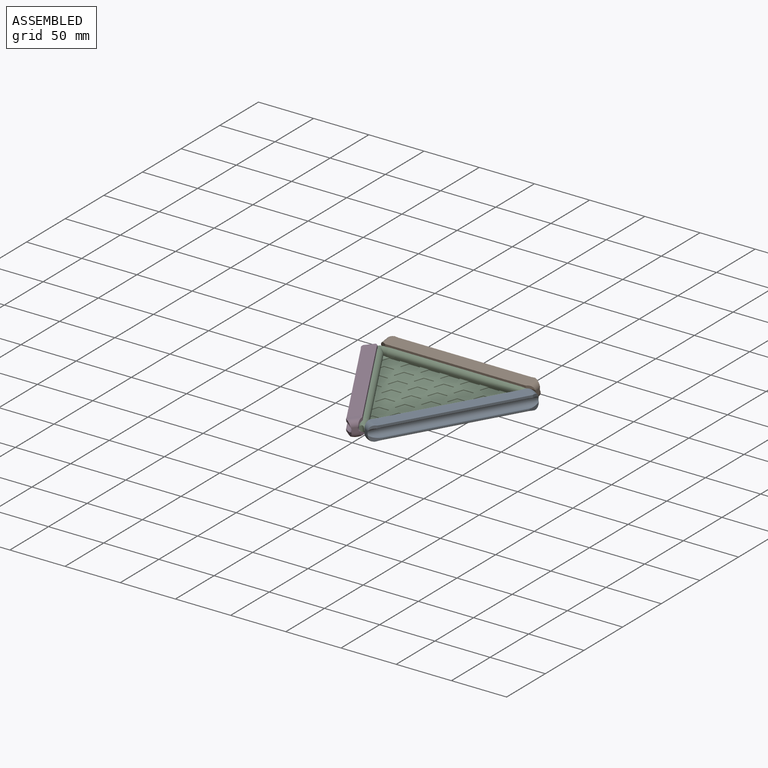
[diagram: assembled view]
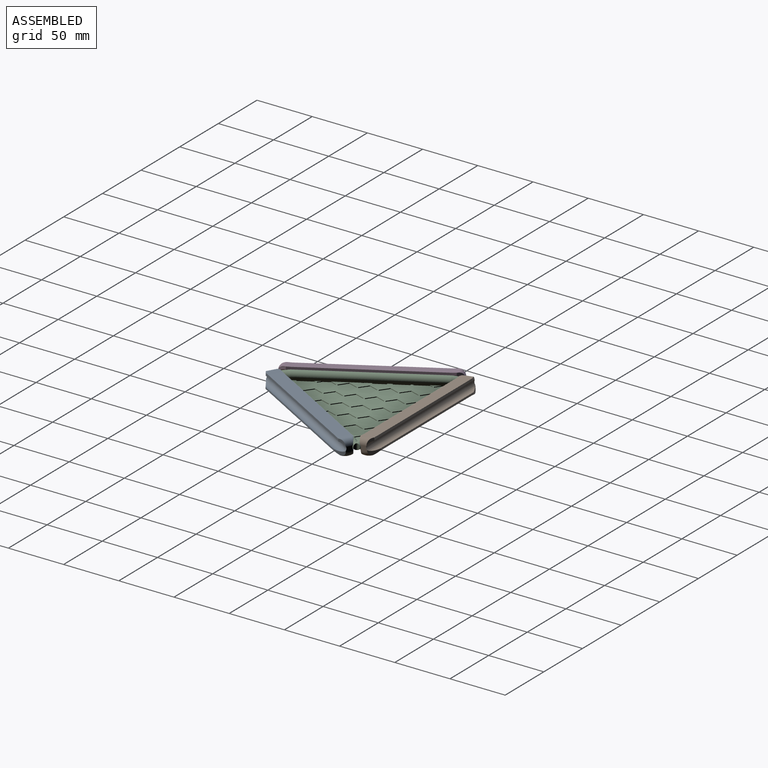
[diagram: assembled view, second angle]
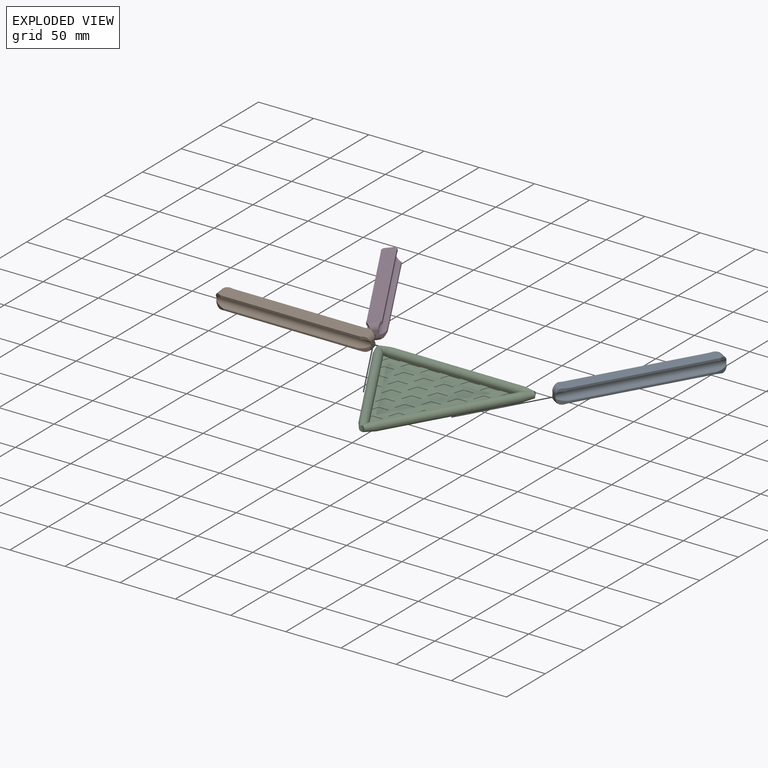
[diagram: exploded view]
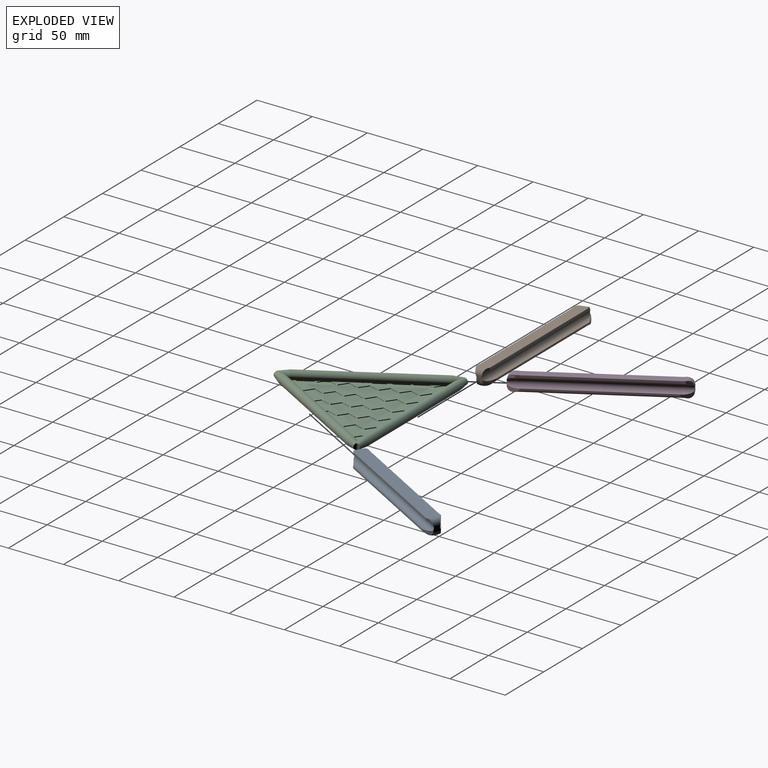
[diagram: exploded view, second angle]
ASSEMBLY  parts=4 mates=3
PART A: 34 faces, bbox 16.4x140x15.6 mm
  f0: plane 120x2mm, normal (-1,0,0), area 240mm2, adj f1,f7,f8,f21
  f1: plane 120x12mm, normal (0,0,-1), area 1440mm2, adj f0,f2,f9,f22
  f2: plane 120x2mm, normal (1,0,0), area 240mm2, adj f1,f3,f10,f23
  f3: cylinder r=4.1mm len=120mm, axis (0,1,0), area 1803.3mm2, adj f2,f4,f11,f24
  f4: plane 120x1.5mm, normal (1,0,0), area 180mm2, adj f3,f5,f18,f31
  f5: cylinder r=13mm len=120mm, axis (0,1,0), area 2083.4mm2, adj f4,f6,f12,f25
  f6: plane 120x1.5mm, normal (-1,0,0), area 180mm2, adj f5,f7,f15,f28
  f7: cylinder r=4.1mm len=120mm, axis (0,1,0), area 1803.3mm2, adj f0,f6,f13,f26
  f8: plane 3.69x2.4mm, normal (-1,0.05,0), area 8.1mm2, adj f0,f9,f13,f16
  f9: plane 12.39x4.74mm, normal (0,0.05,-1), area 57.5mm2, adj f1,f8,f10,f16,f17,f20
  f10: plane 3.69x2.4mm, normal (1,0.05,0), area 8.1mm2, adj f2,f9,f11,f17
  f11: cone r=4.1mm half-angle=3deg, axis (0,1,0), area 106.3mm2, adj f3,f10,f14,f17,f18,f20
  f12: cone r=13mm half-angle=3deg, axis (0,-1,0), area 68.6mm2, adj f5,f15,f18,f19
  f13: cone r=4.1mm half-angle=3deg, axis (0,1,0), area 106.3mm2, adj f7,f8,f14,f15,f16,f20
  f14: plane 6.01x4.45mm, normal (0,-1,0), area 22.8mm2, adj f11,f13,f15,f18,f19,f20
  f15: plane 10x5.05mm, normal (-0.89,-0.45,0), area 29.8mm2, adj f6,f12,f13,f14,f19
  f16: plane 6.28x4.37mm, normal (-0.89,-0.45,0), area 15.6mm2, adj f8,f9,f13,f20
  f17: plane 6.28x4.37mm, normal (0.89,-0.45,0), area 15.6mm2, adj f9,f10,f11,f20
  f18: plane 10x5.05mm, normal (0.89,-0.45,0), area 29.8mm2, adj f4,f11,f12,f14,f19
  f19: torus R=8.26mm, axis (0,-1,0), area 65.9mm2, adj f12,f14,f15,f18
  f20: cylinder r=5mm len=11.32mm, axis (1,0,0), area 64.3mm2, adj f9,f11,f13,f14,f16,f17
  f21: plane 3.69x2.4mm, normal (-1,-0.05,0), area 8.1mm2, adj f0,f22,f26,f29
  f22: plane 12.39x4.74mm, normal (0,-0.05,-1), area 57.5mm2, adj f1,f21,f23,f29,f30,f33
  f23: plane 3.69x2.4mm, normal (1,-0.05,0), area 8.1mm2, adj f2,f22,f24,f30
  f24: cone r=4.1mm half-angle=3deg, axis (0,-1,0), area 106.3mm2, adj f3,f23,f27,f30,f31,f33
  f25: cone r=13mm half-angle=3deg, axis (0,1,0), area 68.6mm2, adj f5,f28,f31,f32
  f26: cone r=4.1mm half-angle=3deg, axis (0,-1,0), area 106.3mm2, adj f7,f21,f27,f28,f29,f33
  f27: plane 6.01x4.45mm, normal (0,1,0), area 22.8mm2, adj f24,f26,f28,f31,f32,f33
  f28: plane 10x5.05mm, normal (-0.89,0.45,0), area 29.8mm2, adj f6,f25,f26,f27,f32
  f29: plane 6.28x4.37mm, normal (-0.89,0.45,0), area 15.6mm2, adj f21,f22,f26,f33
  f30: plane 6.28x4.37mm, normal (0.89,0.45,0), area 15.6mm2, adj f22,f23,f24,f33
  f31: plane 10x5.05mm, normal (0.89,0.45,0), area 29.8mm2, adj f4,f24,f25,f27,f32
  f32: torus R=8.26mm, axis (0,1,0), area 65.9mm2, adj f25,f27,f28,f31
  f33: cylinder r=5mm len=11.32mm, axis (1,0,0), area 64.3mm2, adj f22,f24,f26,f27,f29,f30
PART B: same geometry as A
PART C: 214 faces, bbox 145.1x126.9x8 mm
  f0: plane 116.81x112.57mm, normal (0,0,1), area 3161.4mm2, adj f2,f3,f4,f6,f7,f8,f9,f11
  f1: plane 6.98x6.87mm, normal (0,0,1), area 20.7mm2, adj f178,f184,f187,f194,f195
  f2: plane 1.82x1.32mm, normal (0.59,0.81,0), area 1.3mm2, adj f0,f4,f5,f203
  f3: plane 4.81x0.6mm, normal (0,-1,0), area 2.8mm2, adj f0,f4,f5,f203
  f4: plane 8.83x2.87mm, normal (0.95,-0.31,0), area 5.6mm2, adj f0,f2,f3,f5
  f5: plane 10.15x7.68mm, normal (0,0,1), area 34.3mm2, adj f2,f3,f4,f203
  f6: plane 6.22x4.52mm, normal (-0.59,0.81,0), area 4.6mm2, adj f0,f7,f10,f194
  f7: plane 8.83x2.87mm, normal (-0.95,-0.31,0), area 5.6mm2, adj f0,f6,f8,f10
  f8: plane 9.28x0.6mm, normal (0,-1,0), area 5.6mm2, adj f0,f7,f9,f10
  f9: plane 1.96x0.64mm, normal (0.95,-0.31,0), area 1.2mm2, adj f0,f8,f10,f194
  f10: plane 13.34x12.79mm, normal (0,0,1), area 105.9mm2, adj f6,f7,f8,f9,f194
  f11: plane 0.6x0.54mm, normal (0,-1,0), area 0.3mm2, adj f0,f12,f13,f203
  f12: plane 2.13x0.69mm, normal (0.95,-0.31,0), area 1.1mm2, adj f0,f11,f13,f203
  f13: plane 2.13x1.23mm, normal (0,0,1), area 0.6mm2, adj f11,f12,f203
  f14: plane 7.51x5.45mm, normal (0.59,0.81,0), area 5.6mm2, adj f0,f15,f18,f19
  f15: plane 7.51x5.45mm, normal (-0.59,0.81,0), area 5.6mm2, adj f0,f14,f16,f19
  f16: plane 8.83x2.87mm, normal (-0.95,-0.31,0), area 5.6mm2, adj f0,f15,f17,f19
  f17: plane 9.28x0.6mm, normal (0,-1,0), area 5.6mm2, adj f0,f16,f18,f19
  f18: plane 8.83x2.87mm, normal (0.95,-0.31,0), area 5.6mm2, adj f0,f14,f17,f19
  f19: plane 15.02x14.28mm, normal (0,0,1), area 148.2mm2, adj f14,f15,f16,f17,f18
  f20: plane 3.46x2.51mm, normal (0.59,0.81,0), area 2.4mm2, adj f0,f21,f25,f194
  f21: plane 7.51x5.45mm, normal (-0.59,0.81,0), area 5.6mm2, adj f0,f20,f22,f25
  f22: plane 8.83x2.87mm, normal (-0.95,-0.31,0), area 5.6mm2, adj f0,f21,f23,f25
  f23: plane 9.28x0.6mm, normal (0,-1,0), area 5.6mm2, adj f0,f22,f24,f25
  f24: plane 6.22x2.02mm, normal (0.95,-0.31,0), area 3.9mm2, adj f0,f23,f25,f194
  f25: plane 14.28x14.17mm, normal (0,0,1), area 141.7mm2, adj f20,f21,f22,f23,f24,f194
  f26: plane 7.51x5.45mm, normal (0.59,0.81,0), area 5.6mm2, adj f0,f27,f30,f31
  f27: plane 2.38x1.73mm, normal (-0.59,0.81,0), area 1.6mm2, adj f0,f26,f31,f203
  f28: plane 5.53x1.8mm, normal (-0.95,-0.31,0), area 3.4mm2, adj f0,f29,f31,f203
  f29: plane 9.28x0.6mm, normal (0,-1,0), area 5.6mm2, adj f0,f28,f30,f31
  f30: plane 8.83x2.87mm, normal (0.95,-0.31,0), area 5.6mm2, adj f0,f26,f29,f31
  f31: plane 14.28x13.94mm, normal (0,0,1), area 137.7mm2, adj f26,f27,f28,f29,f30,f203
  f32: plane 7.51x5.45mm, normal (0.59,0.81,0), area 5.6mm2, adj f0,f33,f36,f37
  f33: plane 7.51x5.45mm, normal (-0.59,0.81,0), area 5.6mm2, adj f0,f32,f34,f37
  f34: plane 8.83x2.87mm, normal (-0.95,-0.31,0), area 5.6mm2, adj f0,f33,f35,f37
  f35: plane 9.28x0.6mm, normal (0,-1,0), area 5.6mm2, adj f0,f34,f36,f37
  f36: plane 8.83x2.87mm, normal (0.95,-0.31,0), area 5.6mm2, adj f0,f32,f35,f37
  f37: plane 15.02x14.28mm, normal (0,0,1), area 148.2mm2, adj f32,f33,f34,f35,f36
  f38: plane 7.51x5.45mm, normal (0.59,0.81,0), area 5.6mm2, adj f0,f39,f42,f43
  f39: plane 7.51x5.45mm, normal (-0.59,0.81,0), area 5.6mm2, adj f0,f38,f40,f43
  f40: plane 8.83x2.87mm, normal (-0.95,-0.31,0), area 5.6mm2, adj f0,f39,f41,f43
  f41: plane 9.28x0.6mm, normal (0,-1,0), area 5.6mm2, adj f0,f40,f42,f43
  f42: plane 8.83x2.87mm, normal (0.95,-0.31,0), area 5.6mm2, adj f0,f38,f41,f43
  f43: plane 15.02x14.28mm, normal (0,0,1), area 148.2mm2, adj f38,f39,f40,f41,f42
  f44: plane 2.91x0.95mm, normal (-0.95,-0.31,0), area 1.6mm2, adj f0,f45,f46,f194
  f45: plane 0.74x0.6mm, normal (0,-1,0), area 0.4mm2, adj f0,f44,f46,f194
  f46: plane 2.91x1.68mm, normal (0,0,1), area 1.1mm2, adj f44,f45,f194
  f47: plane 5.47x3.98mm, normal (0.59,0.81,0), area 4mm2, adj f0,f50,f51,f203
  f48: plane 0.79x0.6mm, normal (-0.95,-0.31,0), area 0.4mm2, adj f0,f49,f51,f203
  f49: plane 9.28x0.6mm, normal (0,-1,0), area 5.6mm2, adj f0,f48,f50,f51
  f50: plane 8.83x2.87mm, normal (0.95,-0.31,0), area 5.6mm2, adj f0,f47,f49,f51
  f51: plane 12.8x12.41mm, normal (0,0,1), area 93.6mm2, adj f47,f48,f49,f50,f203
  f52: plane 7.51x5.45mm, normal (0.59,0.81,0), area 5.6mm2, adj f0,f53,f56,f57
  f53: plane 7.51x5.45mm, normal (-0.59,0.81,0), area 5.6mm2, adj f0,f52,f54,f57
  f54: plane 8.83x2.87mm, normal (-0.95,-0.31,0), area 5.6mm2, adj f0,f53,f55,f57
  f55: plane 9.28x0.6mm, normal (0,-1,0), area 5.6mm2, adj f0,f54,f56,f57
  f56: plane 8.83x2.87mm, normal (0.95,-0.31,0), area 5.6mm2, adj f0,f52,f55,f57
  f57: plane 15.02x14.28mm, normal (0,0,1), area 148.2mm2, adj f52,f53,f54,f55,f56
  f58: plane 7.51x5.45mm, normal (0.59,0.81,0), area 5.6mm2, adj f0,f59,f62,f63
  f59: plane 7.51x5.45mm, normal (-0.59,0.81,0), area 5.6mm2, adj f0,f58,f60,f63
  f60: plane 8.83x2.87mm, normal (-0.95,-0.31,0), area 5.6mm2, adj f0,f59,f61,f63
  f61: plane 9.28x0.6mm, normal (0,-1,0), area 5.6mm2, adj f0,f60,f62,f63
  f62: plane 8.83x2.87mm, normal (0.95,-0.31,0), area 5.6mm2, adj f0,f58,f61,f63
  f63: plane 15.02x14.28mm, normal (0,0,1), area 148.2mm2, adj f58,f59,f60,f61,f62
  f64: plane 7.51x5.45mm, normal (0.59,0.81,0), area 5.6mm2, adj f0,f65,f68,f69
  f65: plane 7.51x5.45mm, normal (-0.59,0.81,0), area 5.6mm2, adj f0,f64,f66,f69
  f66: plane 8.83x2.87mm, normal (-0.95,-0.31,0), area 5.6mm2, adj f0,f65,f67,f69
  f67: plane 9.28x0.6mm, normal (0,-1,0), area 5.6mm2, adj f0,f66,f68,f69
  f68: plane 8.83x2.87mm, normal (0.95,-0.31,0), area 5.6mm2, adj f0,f64,f67,f69
  f69: plane 15.02x14.28mm, normal (0,0,1), area 148.2mm2, adj f64,f65,f66,f67,f68
  f70: plane 1.65x1.2mm, normal (-0.59,0.81,0), area 1.2mm2, adj f0,f71,f73,f194
  f71: plane 8.83x2.87mm, normal (-0.95,-0.31,0), area 5.6mm2, adj f0,f70,f72,f73
  f72: plane 4.58x0.6mm, normal (0,-1,0), area 2.7mm2, adj f0,f71,f73,f194
  f73: plane 10.03x7.44mm, normal (0,0,1), area 32mm2, adj f70,f71,f72,f194
  f74: plane 2.47x1.79mm, normal (0.59,0.81,0), area 1.8mm2, adj f0,f76,f77,f203
  f75: plane 5.73x0.6mm, normal (0,-1,0), area 3.4mm2, adj f0,f76,f77,f203
  f76: plane 8.83x2.87mm, normal (0.95,-0.31,0), area 5.6mm2, adj f0,f74,f75,f77
  f77: plane 10.62x8.59mm, normal (0,0,1), area 43.8mm2, adj f74,f75,f76,f203
  f78: plane 7.51x5.45mm, normal (0.59,0.81,0), area 5.6mm2, adj f0,f79,f82,f83
  f79: plane 7.51x5.45mm, normal (-0.59,0.81,0), area 5.6mm2, adj f0,f78,f80,f83
  f80: plane 8.83x2.87mm, normal (-0.95,-0.31,0), area 5.6mm2, adj f0,f79,f81,f83
  f81: plane 9.28x0.6mm, normal (0,-1,0), area 5.6mm2, adj f0,f80,f82,f83
  f82: plane 8.83x2.87mm, normal (0.95,-0.31,0), area 5.6mm2, adj f0,f78,f81,f83
  f83: plane 15.02x14.28mm, normal (0,0,1), area 148.2mm2, adj f78,f79,f80,f81,f82
  f84: plane 7.51x5.45mm, normal (0.59,0.81,0), area 5.6mm2, adj f0,f85,f88,f89
  f85: plane 7.51x5.45mm, normal (-0.59,0.81,0), area 5.6mm2, adj f0,f84,f86,f89
  f86: plane 8.83x2.87mm, normal (-0.95,-0.31,0), area 5.6mm2, adj f0,f85,f87,f89
  f87: plane 9.28x0.6mm, normal (0,-1,0), area 5.6mm2, adj f0,f86,f88,f89
  f88: plane 8.83x2.87mm, normal (0.95,-0.31,0), area 5.6mm2, adj f0,f84,f87,f89
  f89: plane 15.02x14.28mm, normal (0,0,1), area 148.2mm2, adj f84,f85,f86,f87,f88
  f90: plane 7.51x5.45mm, normal (0.59,0.81,0), area 5.6mm2, adj f0,f91,f94,f95
  f91: plane 7.51x5.45mm, normal (-0.59,0.81,0), area 5.6mm2, adj f0,f90,f92,f95
  f92: plane 8.83x2.87mm, normal (-0.95,-0.31,0), area 5.6mm2, adj f0,f91,f93,f95
  f93: plane 9.28x0.6mm, normal (0,-1,0), area 5.6mm2, adj f0,f92,f94,f95
  f94: plane 8.83x2.87mm, normal (0.95,-0.31,0), area 5.6mm2, adj f0,f90,f93,f95
  f95: plane 15.02x14.28mm, normal (0,0,1), area 148.2mm2, adj f90,f91,f92,f93,f94
  f96: plane 7.51x5.45mm, normal (0.59,0.81,0), area 5.6mm2, adj f0,f97,f100,f101
  f97: plane 7.51x5.45mm, normal (-0.59,0.81,0), area 5.6mm2, adj f0,f96,f98,f101
  f98: plane 8.83x2.87mm, normal (-0.95,-0.31,0), area 5.6mm2, adj f0,f97,f99,f101
  f99: plane 9.28x0.6mm, normal (0,-1,0), area 5.6mm2, adj f0,f98,f100,f101
  f100: plane 8.83x2.87mm, normal (0.95,-0.31,0), area 5.6mm2, adj f0,f96,f99,f101
  f101: plane 15.02x14.28mm, normal (0,0,1), area 148.2mm2, adj f96,f97,f98,f99,f100
  f102: plane 4.36x3.17mm, normal (-0.59,0.81,0), area 3.2mm2, adj f0,f103,f105,f194
  f103: plane 8.83x2.87mm, normal (-0.95,-0.31,0), area 5.6mm2, adj f0,f102,f104,f105
  f104: plane 8.42x0.6mm, normal (0,-1,0), area 5mm2, adj f0,f103,f105,f194
  f105: plane 11.99x11.29mm, normal (0,0,1), area 74.3mm2, adj f102,f103,f104,f194
  f106: plane 1.46x0.6mm, normal (0,-1,0), area 0.8mm2, adj f0,f107,f108,f203
  f107: plane 5.77x1.88mm, normal (0.95,-0.31,0), area 3.4mm2, adj f0,f106,f108,f203
  f108: plane 5.77x3.33mm, normal (0,0,1), area 4.2mm2, adj f106,f107,f203
  f109: plane 7.51x5.45mm, normal (0.59,0.81,0), area 5.6mm2, adj f0,f110,f113,f114
  f110: plane 7.51x5.45mm, normal (-0.59,0.81,0), area 5.6mm2, adj f0,f109,f111,f114
  f111: plane 8.83x2.87mm, normal (-0.95,-0.31,0), area 5.6mm2, adj f0,f110,f112,f114
  f112: plane 9.28x0.6mm, normal (0,-1,0), area 5.6mm2, adj f0,f111,f113,f114
  f113: plane 8.83x2.87mm, normal (0.95,-0.31,0), area 5.6mm2, adj f0,f109,f112,f114
  f114: plane 15.02x14.28mm, normal (0,0,1), area 148.2mm2, adj f109,f110,f111,f112,f113
  f115: plane 7.51x5.45mm, normal (0.59,0.81,0), area 5.6mm2, adj f0,f116,f119,f120
  f116: plane 7.51x5.45mm, normal (-0.59,0.81,0), area 5.6mm2, adj f0,f115,f117,f120
  f117: plane 8.83x2.87mm, normal (-0.95,-0.31,0), area 5.6mm2, adj f0,f116,f118,f120
  f118: plane 9.28x0.6mm, normal (0,-1,0), area 5.6mm2, adj f0,f117,f119,f120
  f119: plane 8.83x2.87mm, normal (0.95,-0.31,0), area 5.6mm2, adj f0,f115,f118,f120
  f120: plane 15.02x14.28mm, normal (0,0,1), area 148.2mm2, adj f115,f116,f117,f118,f119
  f121: plane 7.51x5.45mm, normal (0.59,0.81,0), area 5.6mm2, adj f0,f122,f125,f126
  f122: plane 7.51x5.45mm, normal (-0.59,0.81,0), area 5.6mm2, adj f0,f121,f123,f126
  f123: plane 8.83x2.87mm, normal (-0.95,-0.31,0), area 5.6mm2, adj f0,f122,f124,f126
  f124: plane 9.28x0.6mm, normal (0,-1,0), area 5.6mm2, adj f0,f123,f125,f126
  f125: plane 8.83x2.87mm, normal (0.95,-0.31,0), area 5.6mm2, adj f0,f121,f124,f126
  f126: plane 15.02x14.28mm, normal (0,0,1), area 148.2mm2, adj f121,f122,f123,f124,f125
  f127: plane 7.51x5.45mm, normal (0.59,0.81,0), area 5.6mm2, adj f0,f128,f131,f132
  f128: plane 7.51x5.45mm, normal (-0.59,0.81,0), area 5.6mm2, adj f0,f127,f129,f132
  f129: plane 8.83x2.87mm, normal (-0.95,-0.31,0), area 5.6mm2, adj f0,f128,f130,f132
  f130: plane 9.28x0.6mm, normal (0,-1,0), area 5.6mm2, adj f0,f129,f131,f132
  f131: plane 8.83x2.87mm, normal (0.95,-0.31,0), area 5.6mm2, adj f0,f127,f130,f132
  f132: plane 15.02x14.28mm, normal (0,0,1), area 148.2mm2, adj f127,f128,f129,f130,f131
  f133: plane 7.51x5.45mm, normal (0.59,0.81,0), area 5.6mm2, adj f0,f134,f137,f138
  f134: plane 7.51x5.45mm, normal (-0.59,0.81,0), area 5.6mm2, adj f0,f133,f135,f138
  f135: plane 8.83x2.87mm, normal (-0.95,-0.31,0), area 5.6mm2, adj f0,f134,f136,f138
  f136: plane 9.28x0.6mm, normal (0,-1,0), area 5.6mm2, adj f0,f135,f137,f138
  f137: plane 8.83x2.87mm, normal (0.95,-0.31,0), area 5.6mm2, adj f0,f133,f136,f138
  f138: plane 15.02x14.28mm, normal (0,0,1), area 148.2mm2, adj f133,f134,f135,f136,f137
  f139: plane 7.07x5.13mm, normal (-0.59,0.81,0), area 5.2mm2, adj f0,f140,f143,f194
  f140: plane 8.83x2.87mm, normal (-0.95,-0.31,0), area 5.6mm2, adj f0,f139,f141,f143
  f141: plane 9.28x0.6mm, normal (0,-1,0), area 5.6mm2, adj f0,f140,f142,f143
  f142: plane 3.3x1.07mm, normal (0.95,-0.31,0), area 2mm2, adj f0,f141,f143,f194
  f143: plane 13.96x13.22mm, normal (0,0,1), area 119.2mm2, adj f139,f140,f141,f142,f194
  f144: plane 7.51x5.45mm, normal (0.59,0.81,0), area 5.6mm2, adj f0,f145,f147,f148
  f145: plane 3.96x2.88mm, normal (-0.59,0.81,0), area 2.8mm2, adj f0,f144,f148,f203
  f146: plane 5.68x1.84mm, normal (-0.95,-0.31,0), area 3.5mm2, adj f148,f174,f184,f203
  f147: plane 7.96x2.59mm, normal (0.95,-0.31,0), area 5mm2, adj f0,f144,f148,f184
  f148: plane 14.28x13.41mm, normal (0,0,1), area 134.9mm2, adj f144,f145,f146,f147,f184,f203
  f149: plane 7.51x5.45mm, normal (0.59,0.81,0), area 5.6mm2, adj f0,f150,f152,f153
  f150: plane 7.51x5.45mm, normal (-0.59,0.81,0), area 5.6mm2, adj f0,f149,f151,f153
  f151: plane 7.96x2.59mm, normal (-0.95,-0.31,0), area 5mm2, adj f0,f150,f153,f184
  f152: plane 7.96x2.59mm, normal (0.95,-0.31,0), area 5mm2, adj f0,f149,f153,f184
  f153: plane 15.02x13.41mm, normal (0,0,1), area 139.8mm2, adj f149,f150,f151,f152,f184
  f154: plane 7.51x5.45mm, normal (0.59,0.81,0), area 5.6mm2, adj f0,f155,f157,f158
  f155: plane 7.51x5.45mm, normal (-0.59,0.81,0), area 5.6mm2, adj f0,f154,f156,f158
  f156: plane 7.96x2.59mm, normal (-0.95,-0.31,0), area 5mm2, adj f0,f155,f158,f184
  f157: plane 7.96x2.59mm, normal (0.95,-0.31,0), area 5mm2, adj f0,f154,f158,f184
  f158: plane 15.02x13.41mm, normal (0,0,1), area 139.8mm2, adj f154,f155,f156,f157,f184
  f159: plane 7.51x5.45mm, normal (0.59,0.81,0), area 5.6mm2, adj f0,f160,f162,f163
  f160: plane 7.51x5.45mm, normal (-0.59,0.81,0), area 5.6mm2, adj f0,f159,f161,f163
  f161: plane 7.96x2.59mm, normal (-0.95,-0.31,0), area 5mm2, adj f0,f160,f163,f184
  f162: plane 7.96x2.59mm, normal (0.95,-0.31,0), area 5mm2, adj f0,f159,f163,f184
  f163: plane 15.02x13.41mm, normal (0,0,1), area 139.8mm2, adj f159,f160,f161,f162,f184
  f164: plane 7.51x5.45mm, normal (0.59,0.81,0), area 5.6mm2, adj f0,f165,f167,f168
  f165: plane 7.51x5.45mm, normal (-0.59,0.81,0), area 5.6mm2, adj f0,f164,f166,f168
  f166: plane 7.96x2.59mm, normal (-0.95,-0.31,0), area 5mm2, adj f0,f165,f168,f184
  f167: plane 7.96x2.59mm, normal (0.95,-0.31,0), area 5mm2, adj f0,f164,f168,f184
  f168: plane 15.02x13.41mm, normal (0,0,1), area 139.8mm2, adj f164,f165,f166,f167,f184
  f169: plane 7.51x5.45mm, normal (0.59,0.81,0), area 5.6mm2, adj f0,f170,f172,f173
  f170: plane 7.51x5.45mm, normal (-0.59,0.81,0), area 5.6mm2, adj f0,f169,f171,f173
  f171: plane 7.96x2.59mm, normal (-0.95,-0.31,0), area 5mm2, adj f0,f170,f173,f184
  f172: plane 7.96x2.59mm, normal (0.95,-0.31,0), area 5mm2, adj f0,f169,f173,f184
  f173: plane 15.02x13.41mm, normal (0,0,1), area 139.8mm2, adj f169,f170,f171,f172,f184
  f174: plane 5.97x5.96mm, normal (0,0,1), area 15.5mm2, adj f146,f184,f185,f203,f207
  f175: plane 5.54x4.02mm, normal (0.59,0.81,0), area 4mm2, adj f0,f176,f179,f194
  f176: plane 7.51x5.45mm, normal (-0.59,0.81,0), area 5.6mm2, adj f0,f175,f177,f179
  f177: plane 7.96x2.59mm, normal (-0.95,-0.31,0), area 5mm2, adj f0,f176,f179,f184
  f178: plane 6.69x2.17mm, normal (0.95,-0.31,0), area 4.1mm2, adj f1,f179,f184,f194
  f179: plane 14.6x13.41mm, normal (0,0,1), area 138.3mm2, adj f175,f176,f177,f178,f184,f194
  f180: plane 10x5.77mm, normal (0.12,0,-0.99), area 29.1mm2, adj f181,f208,f210
  f181: cone r=4mm half-angle=7deg, axis (-1,0,0), area 147.6mm2, adj f180,f183,f185,f186,f190,f211
  f182: cone r=4mm half-angle=7deg, axis (1,0,0), area 147.6mm2, adj f183,f187,f188,f189,f191,f212
  f183: cylinder r=4mm len=120mm, axis (-1,0,0), area 2398.2mm2, adj f181,f182,f184,f210
  f184: plane 120x2.28mm, normal (0,-0.96,-0.28), area 253.3mm2, adj f0,f1,f146,f147,f148,f151,f152,f153
  f185: plane 5.39x1.82mm, normal (0.12,-0.95,-0.28), area 8.9mm2, adj f174,f181,f184,f207
  f186: plane 4.73x1.33mm, normal (1,0,0), area 4.4mm2, adj f181,f211
  f187: plane 5.39x1.82mm, normal (-0.12,-0.95,-0.28), area 8.9mm2, adj f1,f182,f184,f195
  f188: plane 10x5.77mm, normal (-0.12,0,-0.99), area 29.1mm2, adj f182,f196,f210
  f189: plane 4.73x1.33mm, normal (-1,0,0), area 4.4mm2, adj f182,f212
  f190: cone r=4mm half-angle=7deg, axis (-0.5,-0.87,0), area 147.6mm2, adj f181,f202,f207,f208,f209,f211
  f191: cone r=4mm half-angle=7deg, axis (0.5,-0.87,0), area 147.6mm2, adj f182,f193,f195,f196,f197,f212
  f192: cone r=4mm half-angle=7deg, axis (-0.5,0.87,0), area 147.6mm2, adj f193,f198,f199,f200,f201,f213
  f193: cylinder r=4mm len=107.92mm, axis (0.5,-0.87,0), area 2398.2mm2, adj f191,f192,f194,f210
  f194: plane 104.17x60.42mm, normal (0.83,0.48,-0.28), area 249.9mm2, adj f0,f1,f6,f9,f10,f20,f24,f25
  f195: plane 4.33x3.72mm, normal (0.76,0.58,-0.28), area 8.9mm2, adj f1,f187,f191,f194
  f196: plane 10x8.66mm, normal (-0.06,0.11,-0.99), area 29.1mm2, adj f188,f191,f210
  f197: plane 4.73x1.15mm, normal (-0.5,0.87,0), area 4.4mm2, adj f191,f212
  f198: plane 5.26x2.1mm, normal (0.89,0.37,-0.28), area 8.9mm2, adj f0,f192,f194,f204
  f199: plane 11.55x5mm, normal (0.06,-0.11,-0.99), area 29.1mm2, adj f192,f205,f210
  f200: plane 4.73x1.15mm, normal (0.5,-0.87,0), area 4.4mm2, adj f192,f213
  f201: cone r=4mm half-angle=7deg, axis (0.5,0.87,0), area 147.6mm2, adj f192,f202,f204,f205,f206,f213
  f202: cylinder r=4mm len=107.92mm, axis (0.5,0.87,0), area 2398.2mm2, adj f190,f201,f203,f210
  f203: plane 104.17x60.42mm, normal (-0.83,0.48,-0.28), area 247.7mm2, adj f0,f2,f3,f5,f11,f12,f13,f27
  f204: plane 5.26x2.1mm, normal (-0.89,0.37,-0.28), area 8.9mm2, adj f0,f198,f201,f203
  f205: plane 11.55x5mm, normal (-0.06,-0.11,-0.99), area 29.1mm2, adj f199,f201,f210
  f206: plane 4.73x1.15mm, normal (-0.5,-0.87,0), area 4.4mm2, adj f201,f213
  f207: plane 4.33x3.72mm, normal (-0.76,0.58,-0.28), area 8.9mm2, adj f174,f185,f190,f203
  f208: plane 10x8.66mm, normal (0.06,0.11,-0.99), area 29.1mm2, adj f180,f190,f210
  f209: plane 4.73x1.15mm, normal (0.5,0.87,0), area 4.4mm2, adj f190,f211
  f210: plane 130x112.58mm, normal (0,0,-1), area 8313.8mm2, adj f180,f183,f188,f193,f196,f199,f202,f205
  f211: cylinder r=2.5mm len=5.45mm, axis (0,0,-1), area 13.7mm2, adj f181,f186,f190,f209
  f212: cylinder r=2.5mm len=5.45mm, axis (0,0,1), area 13.7mm2, adj f182,f189,f191,f197
  f213: cylinder r=2.5mm len=5.45mm, axis (0,0,1), area 13.7mm2, adj f192,f200,f201,f206
PART D: same geometry as A
PLACE A rot(axis=(-0.26,-0.97,0),180deg) t=(47.42,10.94,-78.45)mm
PLACE B rot(axis=(-0.71,-0.71,-0.05),174.5deg) t=(6.98,80.51,-77.63)mm
PLACE C t=(7.22,34.15,-82.45)mm fixed
PLACE D rot(axis=(-0.26,0.97,0.02),171deg) t=(-33,11.14,-79.42)mm
MATE cylindrical C.f191 <-> D.f7  axis (0.5,-0.87,0) through (-27.78,13.94,-78.45)mm
MATE cylindrical C.f190 <-> A.f3  axis (0.5,0.87,0) through (42.22,13.94,-78.45)mm
MATE cylindrical C.f181 <-> B.f7  axis (-1,0,0) through (7.22,74.57,-78.45)mm
